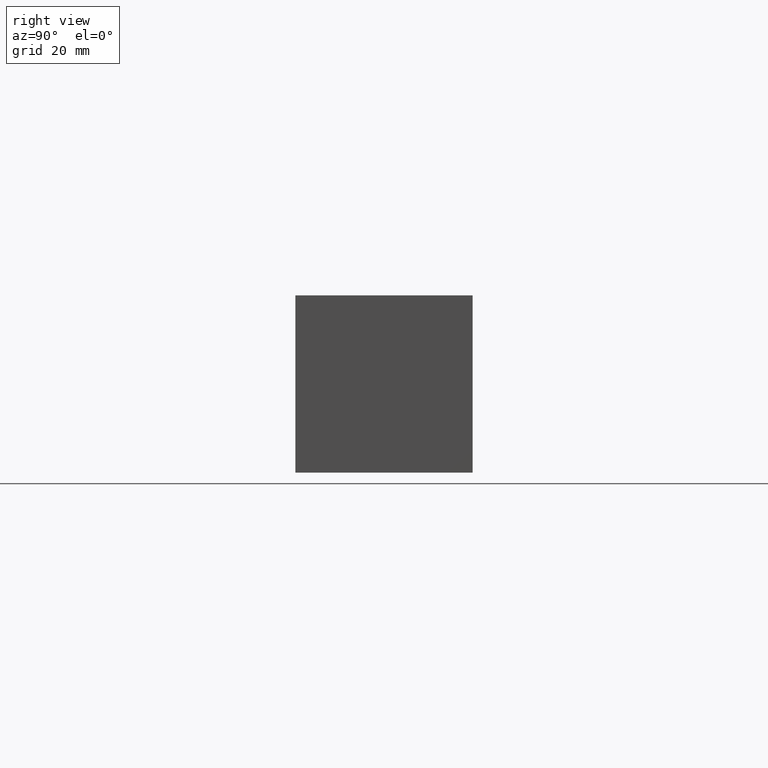
[diagram: clean part render]
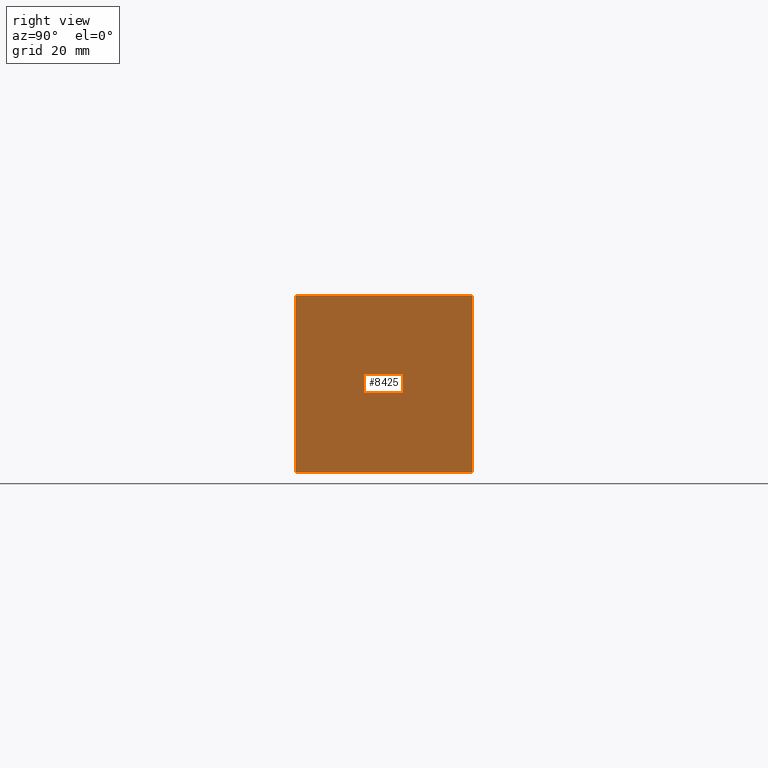
[diagram: same view with one face highlighted and labeled with its STEP entity id]
A machine part, right view. The second image highlights one B-rep face of the part: STEP entity #8425.
In plain terms, the highlighted planar face has unit normal (1, 0, 0).
Its self-contained STEP definition (entity closure, byte-faithful):
#608=PLANE('',#8975);
#1046=FACE_OUTER_BOUND('',#1536,.T.);
#1536=EDGE_LOOP('',(#7535,#7536,#7537,#7538));
#1813=LINE('',#13108,#2526);
#2259=LINE('',#14774,#2972);
#2260=LINE('',#14777,#2973);
#2261=LINE('',#14778,#2974);
#2526=VECTOR('',#9370,10.);
#2972=VECTOR('',#10754,10.);
#2973=VECTOR('',#10757,10.);
#2974=VECTOR('',#10758,10.);
#3551=VERTEX_POINT('',#13105);
#3552=VERTEX_POINT('',#13107);
#4017=VERTEX_POINT('',#14772);
#4018=VERTEX_POINT('',#14776);
#4494=EDGE_CURVE('',#3551,#3552,#1813,.T.);
#5198=EDGE_CURVE('',#4017,#3552,#2259,.T.);
#5199=EDGE_CURVE('',#4018,#4017,#2260,.T.);
#5200=EDGE_CURVE('',#4018,#3551,#2261,.T.);
#7535=ORIENTED_EDGE('',*,*,#5199,.T.);
#7536=ORIENTED_EDGE('',*,*,#5198,.T.);
#7537=ORIENTED_EDGE('',*,*,#4494,.F.);
#7538=ORIENTED_EDGE('',*,*,#5200,.F.);
#8425=ADVANCED_FACE('',(#1046),#608,.T.);
#8975=AXIS2_PLACEMENT_3D('',#14775,#10755,#10756);
#9370=DIRECTION('',(0.,1.,0.));
#10754=DIRECTION('',(0.,0.,1.));
#10755=DIRECTION('center_axis',(1.,0.,0.));
#10756=DIRECTION('ref_axis',(0.,1.,0.));
#10757=DIRECTION('',(0.,1.,0.));
#10758=DIRECTION('',(0.,0.,1.));
#13105=CARTESIAN_POINT('',(196.85,0.,50.8));
#13107=CARTESIAN_POINT('',(196.85,50.8,50.8));
#13108=CARTESIAN_POINT('',(196.85,0.,50.8));
#14772=CARTESIAN_POINT('',(196.85,50.8,0.));
#14774=CARTESIAN_POINT('',(196.85,50.8,0.));
#14775=CARTESIAN_POINT('Origin',(196.85,0.,0.));
#14776=CARTESIAN_POINT('',(196.85,0.,0.));
#14777=CARTESIAN_POINT('',(196.85,0.,0.));
#14778=CARTESIAN_POINT('',(196.85,0.,0.));